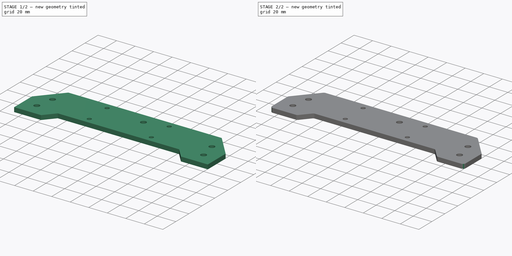
[diagram: build sequence overview — one tinted view per stage of 2, left to right]
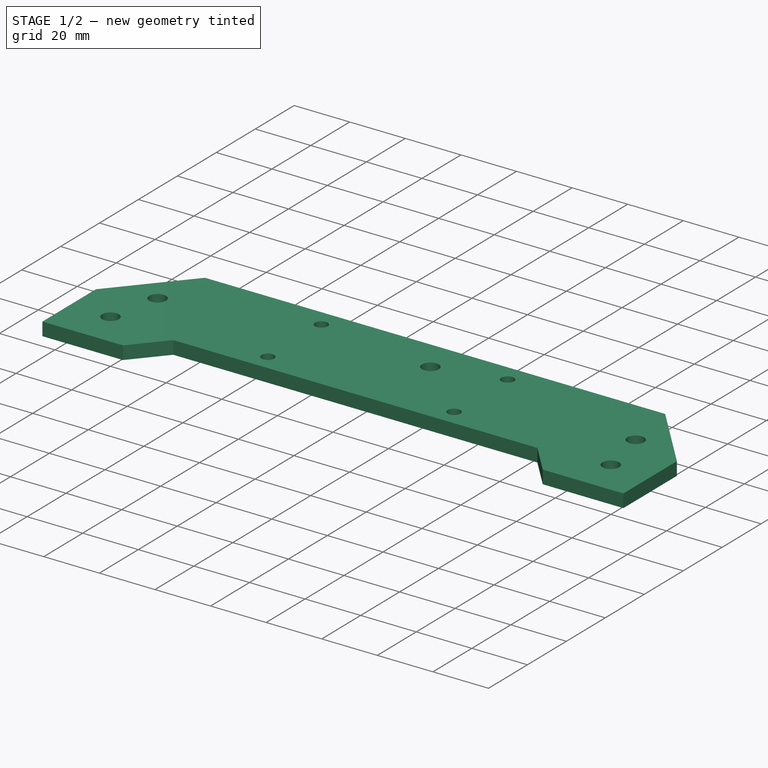
[diagram: stage 1 of 2 — iso view after this stage's code; geometry added in this stage tinted green]
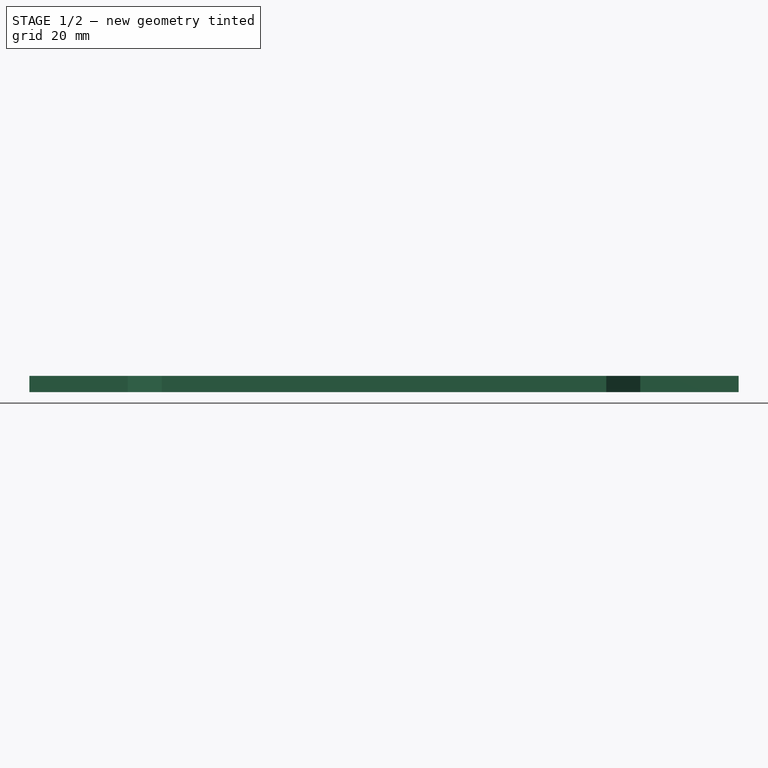
[diagram: stage 1 of 2 — front view after this stage's code; geometry added in this stage tinted green]
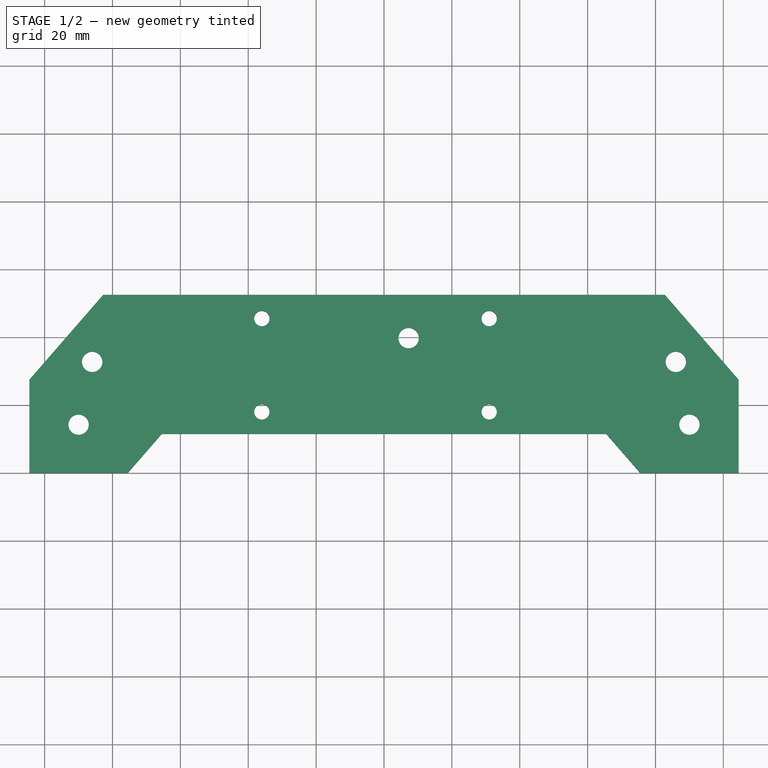
[diagram: stage 1 of 2 — top view after this stage's code; geometry added in this stage tinted green]
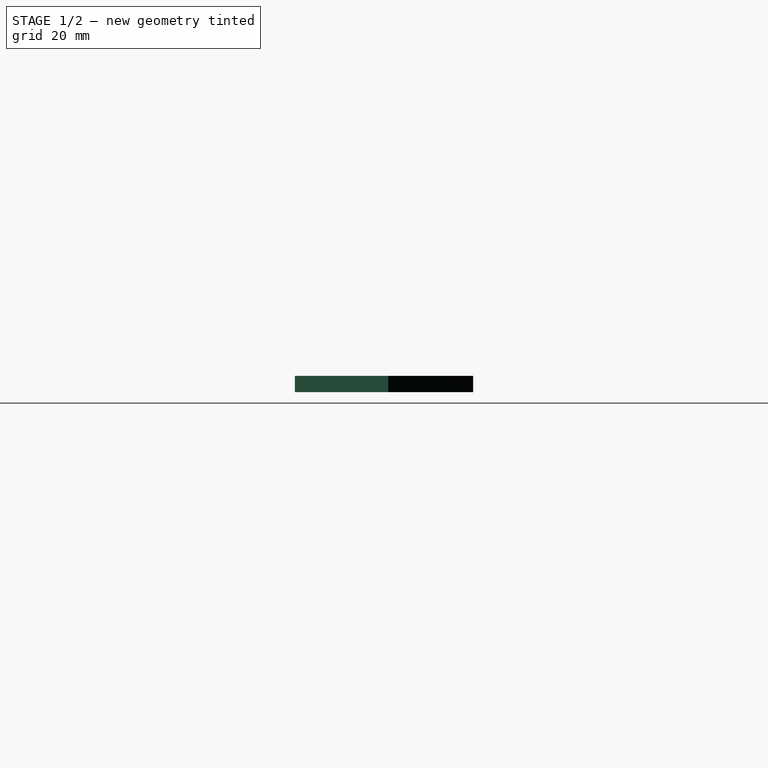
[diagram: stage 1 of 2 — right view after this stage's code; geometry added in this stage tinted green]
FCSTD DOCUMENT  (FreeCAD 0.18R4 (GitTag))
Label: [100070] Sheet Metal, Y End Plate, Syn1
License: CreativeCommons Attribution-ShareAlike
LicenseURL: http://creativecommons.org/licenses/by-sa/4.0/
objects: Drawing::FeatureView×53, Drawing::FeatureViewPython×9, Drawing::FeatureViewPart×2, Sketcher::SketchObject×1, PartDesign::Pad×1, Part::FeaturePython×1, PartDesign::Fillet×1, PartDesign::Body×1, Drawing::FeaturePage×1
note: 6 computed .brp shape members not serialized (recipe doc carries the construction recipe); baked Part::Feature solids carry a one-line shape summary decoded from their .brp

FEATURE [Sketcher::SketchObject] Sketch
  MapMode = 5
  Support = -> [XY_Plane]
  sketch-geometry (25):
    g0: LineSegment StartX=-104.5 StartY=0 StartZ=0 EndX=-104.5 EndY=27.5 EndZ=0
    g1: LineSegment StartX=-104.5 StartY=27.5 StartZ=0 EndX=-82.7678 EndY=52.5 EndZ=0
    g2: LineSegment StartX=-82.7678 StartY=52.5 StartZ=0 EndX=82.7678 EndY=52.5 EndZ=0
    g3: LineSegment StartX=82.7678 StartY=52.5 StartZ=0 EndX=104.5 EndY=27.5 EndZ=0
    g4: LineSegment StartX=104.5 StartY=27.5 StartZ=0 EndX=104.5 EndY=0 EndZ=0
    g5: LineSegment StartX=104.5 StartY=0 StartZ=0 EndX=75.5 EndY=0 EndZ=0
    g6: Circle CenterX=7.25 CenterY=39.75 CenterZ=0 NormalX=0 NormalY=0 NormalZ=1 AngleXU=0 Radius=3
    g7: Circle CenterX=86 CenterY=32.75 CenterZ=0 NormalX=0 NormalY=0 NormalZ=1 AngleXU=0 Radius=3
    g8: Circle CenterX=90 CenterY=14.25 CenterZ=0 NormalX=0 NormalY=0 NormalZ=1 AngleXU=0 Radius=3
    g9: Circle CenterX=-90 CenterY=14.25 CenterZ=0 NormalX=0 NormalY=0 NormalZ=1 AngleXU=0 Radius=3
    g10: Circle CenterX=-86 CenterY=32.75 CenterZ=0 NormalX=0 NormalY=0 NormalZ=1 AngleXU=0 Radius=3
    g11: LineSegment [constr] StartX=-86 StartY=32.75 StartZ=0 EndX=86 EndY=32.75 EndZ=0
    g12: LineSegment [constr] StartX=90 StartY=14.25 StartZ=0 EndX=-90 EndY=14.25 EndZ=0
    g13: LineSegment StartX=-75.5 StartY=0 StartZ=0 EndX=-65.5032 EndY=11.5 EndZ=0
    g14: LineSegment StartX=-65.5032 StartY=11.5 StartZ=0 EndX=65.5032 EndY=11.5 EndZ=0
    g15: LineSegment StartX=65.5032 StartY=11.5 StartZ=0 EndX=75.5 EndY=0 EndZ=0
    g16: LineSegment StartX=-75.5 StartY=0 StartZ=0 EndX=-104.5 EndY=0 EndZ=0
    g17: LineSegment [constr] StartX=-36 StartY=45.5 StartZ=0 EndX=31 EndY=45.5 EndZ=0
    g18: LineSegment [constr] StartX=31 StartY=45.5 StartZ=0 EndX=31 EndY=18 EndZ=0
    g19: LineSegment [constr] StartX=31 StartY=18 StartZ=0 EndX=-36 EndY=18 EndZ=0
    g20: LineSegment [constr] StartX=-36 StartY=18 StartZ=0 EndX=-36 EndY=45.5 EndZ=0
    g21: Circle CenterX=-36 CenterY=45.5 CenterZ=0 NormalX=0 NormalY=0 NormalZ=1 AngleXU=0 Radius=2.25
    g22: Circle CenterX=-36 CenterY=18 CenterZ=0 NormalX=0 NormalY=0 NormalZ=1 AngleXU=0 Radius=2.25
    g23: Circle CenterX=31 CenterY=18 CenterZ=0 NormalX=0 NormalY=0 NormalZ=1 AngleXU=0 Radius=2.25
    g24: Circle CenterX=31 CenterY=45.5 CenterZ=0 NormalX=0 NormalY=0 NormalZ=1 AngleXU=0 Radius=2.25
  constraints (68):
    c: PointOnObject(g0,g-1)
    c: Vertical(g0)
    c: Coincident(g0,g1)
    c: Coincident(g1,g2)
    c: Horizontal(g2)
    c: Coincident(g2,g3)
    c: Coincident(g3,g4)
    c: PointOnObject(g4,g-1)
    c: Vertical(g4)
    c: Coincident(g4,g5)
    c: Coincident(g16,g0)
    c: DistanceX(g0,g-1) = 104.5
    c: Angle(g1) = 0.855211
    c: DistanceY(g0,g0) = 27.5
    c: Equal(g4,g0)
    c: Angle(g3) = -0.855211
    c: DistanceX(g4) = 104.5
    c: DistanceY(g3,g3) = 25
    c: DistanceY(g6,g1) = 12.75
    c: Radius(g6) = 3
    c: Coincident(g11,g10)
    c: Coincident(g11,g7)
    c: Horizontal(g11)
    c: Coincident(g12,g8)
    c: Horizontal(g12)
    c: Coincident(g9,g12)
    c: DistanceX(g0,g9) = 14.5
    c: DistanceY(g0,g9) = 14.25
    c: DistanceX(g10,g9) = -4
    c: DistanceY(g10,g9) = -18.5
    c: DistanceX(g8,g4) = 14.5
    c: DistanceX(g7,g4) = 18.5
    c: Equal(g7,g8)
    c: Equal(g8,g9)
    c: Equal(g9,g10)
    c: Equal(g10,g6)
    c: Coincident(g13,g14)
    c: Coincident(g14,g15)
    c: Equal(g13,g15)
    c: Parallel(g15,g3)
    c: Coincident(g5,g15)
    c: Coincident(g16,g13)
    c: Tangent(g5,g16)
    c: DistanceX(g5,g5) = 29
    c: DistanceX(g16,g16) = 29
    c: Horizontal(g14)
    c: DistanceY(g13,g13) = 11.5
    c: DistanceX(g0,g6) = 111.75
    c: Coincident(g17,g18)
    c: Coincident(g18,g19)
    c: Coincident(g19,g20)
    c: Coincident(g20,g17)
    c: Horizontal(g17)
    c: Horizontal(g19)
    c: Vertical(g18)
    c: Vertical(g20)
    c: Coincident(g21,g17)
    c: Coincident(g22,g19)
    c: Coincident(g23,g18)
    c: Coincident(g24,g17)
    c: DistanceY(g6,g17) = 5.75
    c: DistanceX(g6,g17) = 23.75
    c: DistanceX(g6,g19) = -43.25
    c: DistanceY(g6,g19) = -21.75
    c: Radius(g21) = 2.25
    c: Equal(g21,g22)
    c: Equal(g21,g23)
    c: Equal(g21,g24)
FEATURE [PartDesign::Pad] Pad
  Length = 4.763
  Length2 = 100
  Profile = -> Sketch
  Type = 0
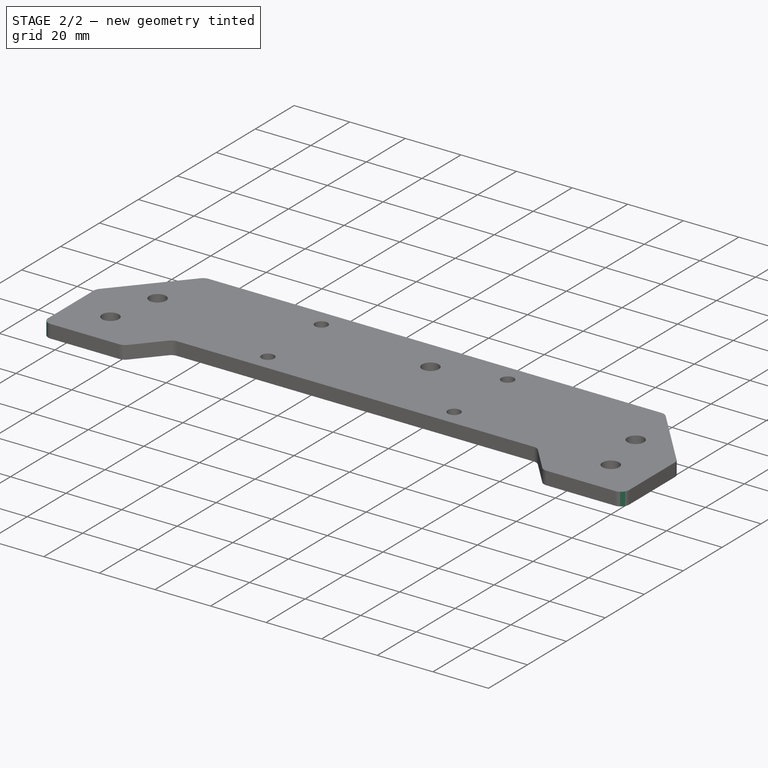
[diagram: stage 2 of 2 — iso view after this stage's code; geometry added in this stage tinted green]
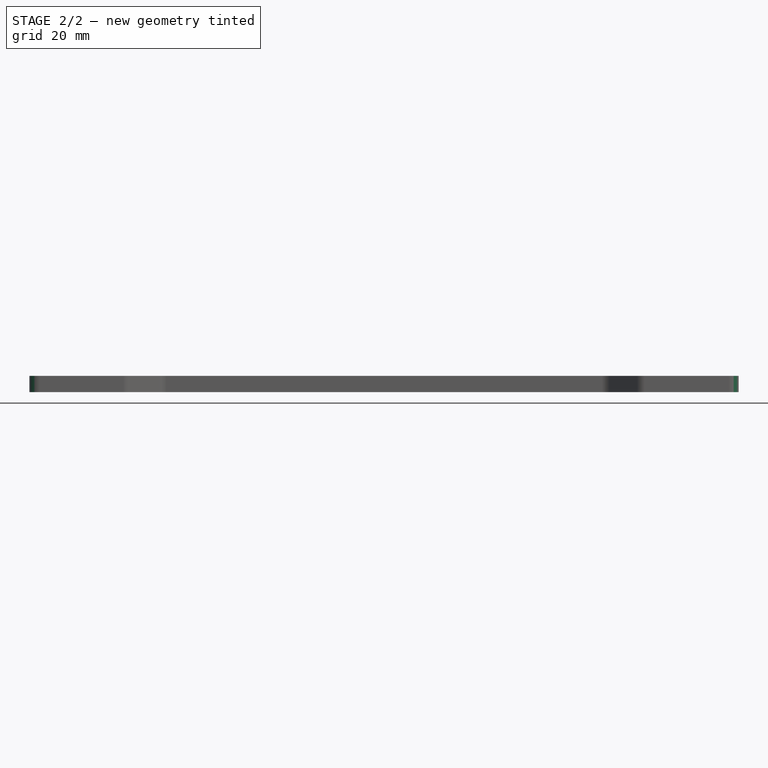
[diagram: stage 2 of 2 — front view after this stage's code; geometry added in this stage tinted green]
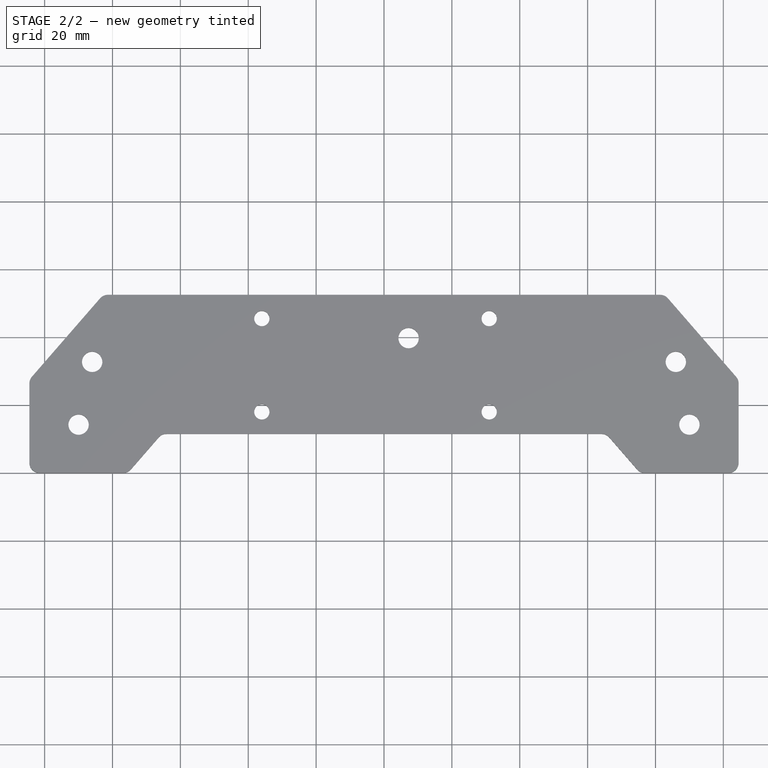
[diagram: stage 2 of 2 — top view after this stage's code; geometry added in this stage tinted green]
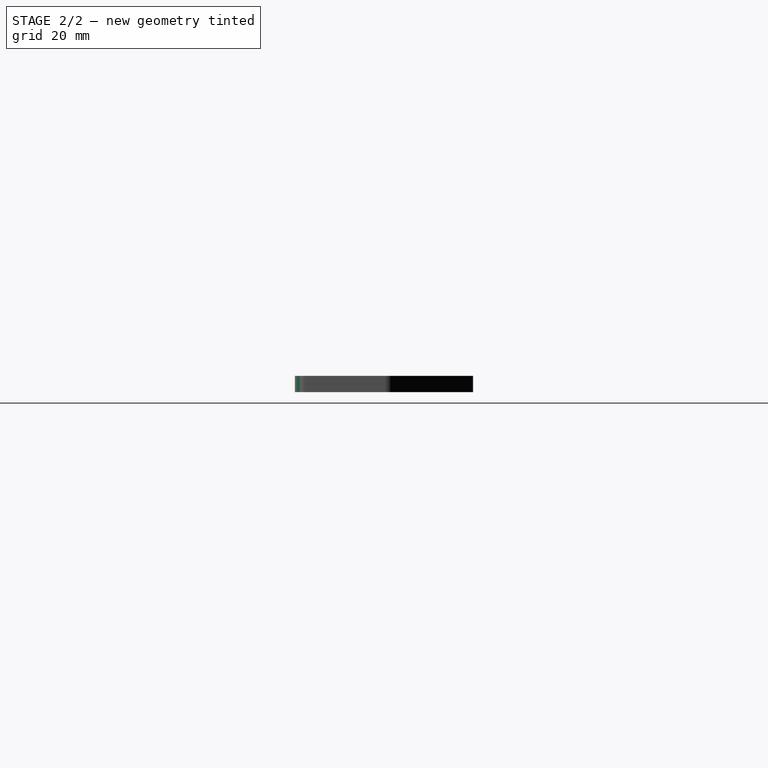
[diagram: stage 2 of 2 — right view after this stage's code; geometry added in this stage tinted green]
FEATURE [Part::FeaturePython] Y_bed_assembly_01  # a2plus imported part (geometry in sourceFile) (typed FeaturePython)
  fixedPosition = true
  sourceFile = <userpath>/Projects/taz-quiver/Production_parts/Printed_parts/TAZ7_assembly/Assemblies/Y_bed_assembly.fcstd
  timeLastImport = 1.52227e+09
  updateColors = true
FEATURE [PartDesign::Fillet] Fillet
  Base = -> Pad [Edge11,Edge14,Edge17,Edge20,Edge23,Edge26,Edge1,Edge2,Edge5,Edge8]
  BaseFeature = -> Pad
  Radius = 3
FEATURE [PartDesign::Body] Body
  Group = -> [Sketch,Pad,Fillet]
  Origin = -> Origin
  Tip = -> Pad
FEATURE [Drawing::FeatureViewPart] Ortho  label="Ortho_0_0"
  Direction = (0,0,1)
  HiddenWidth = 0.15
  LineWidth = 0.35
  Rotation = 0
  Scale = 0.5
  ShowHiddenLines = false
  ShowSmoothLines = false
  Source = -> Fillet
  Tolerance = 0.05
  ViewResult = <g id="Ortho_0_0"\n   transform="rotate(0,170,94.625) translate(170,94.625) scale(0.5,0.5)"\n  >\n<g   fill="none"\n   stroke="rgb(0, 0, 0)"\n   stroke-linecap="butt"\n   stroke-linejoin="miter"\n   stroke-width="0.700000"\n   transform="scale(1,-1)"\n  >\n<path id= "1" d=" M -76.8672 0 L -101.5 0 " />\n<path d="M-76.8672 -4.44089e-16 A3 3 0 0 1 -74.6031 1.03182" /><path d="M-101.5 -4.44089e-16 A3 3 0 0 0 -104.5 3" /><path id= "4" d=" M -74.6031 1.03182 L -66.4002 10.4682 " />\n<path id= "5" d=" M -104.5 3 L -104.5 26.3783 " />\n<path d="M-64.136 11.5 A3 3 0 0 1 -66.4002 10.4682" /><path d="M-104.5 26.3783 A3 3 0 0 0 -103.764 28.3465" /><path id= "8" d=" M -64.136 11.5 L 64.136 11.5 " />\n<path id= "9" d=" M -103.764 28.3465 L -83.6648 51.4682 " />\n<path d="M66.4002 10.4682 A3 3 0 0 1 64.136 11.5" /><path d="M-83.6648 51.4682 A3 3 0 0 0 -81.4007 52.5" /><path id= "12" d=" M 66.4002 10.4682 L 74.6031 1.03182 " />\n<path id= "13" d=" M -81.4007 52.5 L 81.4007 52.5 " />\n<path d="M76.8672 -1.33227e-15 A3 3 0 0 0 74.6031 1.03182" /><path d="M81.4007 52.5 A3 3 0 0 0 83.6648 51.4682" /><path id= "16" d=" M 101.5 0 L 76.8672 0 " />\n<path id= "17" d=" M 83.6648 51.4682 L 103.764 28.3465 " />\n<path d="M104.5 3 A3 3 0 0 0 101.5 -4.44089e-16" /><path d="M103.764 28.3465 A3 3 0 0 0 104.5 26.3783" /><path id= "20" d=" M 104.5 26.3783 L 104.5 3 " />\n<circle cx ="-86" cy ="32.75" r ="3" /><circle cx ="-90" cy ="14.25" r ="3" /><circle cx ="90" cy ="14.25" r ="3" /><circle cx ="86" cy ="32.75" r ="3" /><circle cx ="7.25" cy ="39.75" r ="3" /><circle cx ="31" cy ="18" r ="2.25" /><circle cx ="-36" cy ="18" r ="2.25" /><circle cx ="31" cy ="45.5" r ="2.25" /><circle cx ="-36" cy ="45.5" r ="2.25" /></g>\n</g>
  Visible = true
  X = 170
  Y = 94.625
FEATURE [Drawing::FeatureViewPart] Ortho001  label="Ortho_1_0"
  Direction = (-1,0,0)
  HiddenWidth = 0.15
  LineWidth = 0.35
  Rotation = 180
  Scale = 0.5
  ShowHiddenLines = false
  ShowSmoothLines = false
  Source = -> Fillet
  Tolerance = 0.05
  ViewResult = <blob: 2029 chars omitted>
  Visible = true
  X = 262.354
  Y = 94.625
FEATURE [Drawing::FeatureView] centerLines001
  Rotation = 0
  ViewResult = <g transform="scale(0.500000,0.500000)" stroke="rgb(0,0,255)"  stroke-width="0.640000" > <path d="M 304.000000,143.750000 L 310.000000,143.750000 M 314.000000,143.750000 L 326.000000,143.750000 M 330.000000,143.750000 L 336.000000,143.750000 M 340.000000,143.750000 L 352.000000,143.750000 M 356.000000,143.750000 L 362.000000,143.750000 M 366.000000,143.750000 L 370.666859,143.750000 "/>\n<path d="M 304.000000,143.750000 L 310.000000,143.750000 M 314.000000,143.750000 L 326.000000,143.750000 M 330.000000,143.750000 L 336.000000,143.750000 M 340.000000,143.750000 L 352.000000,143.750000 M 356.000000,143.750000 L 362.000000,143.750000 M 366.000000,143.750000 L 369.770988,143.750000 "/> </g> 
  Visible = true
  X = 0
  Y = 0
FEATURE [Drawing::FeatureView] centerLines002
  Rotation = 0
  ViewResult = <g transform="scale(0.500000,0.500000)" stroke="rgb(0,0,255)"  stroke-width="0.640000" > <path d="M 371.000000,143.750000 L 371.000000,149.750000 M 371.000000,153.750000 L 371.000000,165.750000 M 371.000000,169.750000 L 371.000000,171.223453 "/>\n<path d="M 371.000000,143.750000 L 371.000000,149.750000 M 371.000000,153.750000 L 371.000000,165.750000 M 371.000000,169.750000 L 371.000000,171.223453 "/> </g> 
  Visible = true
  X = 0
  Y = 0
FEATURE [Drawing::FeatureView] centerLines003
  Rotation = 0
  ViewResult = <g transform="scale(0.500000,0.500000)" stroke="rgb(0,0,255)"  stroke-width="0.640000" > <path d="M 371.000000,171.250000 L 365.000000,171.250000 M 361.000000,171.250000 L 349.000000,171.250000 M 345.000000,171.250000 L 339.000000,171.250000 M 335.000000,171.250000 L 323.000000,171.250000 M 319.000000,171.250000 L 313.000000,171.250000 M 309.000000,171.250000 L 303.476492,171.250000 "/>\n<path d="M 371.000000,171.250000 L 365.000000,171.250000 M 361.000000,171.250000 L 349.000000,171.250000 M 345.000000,171.250000 L 339.000000,171.250000 M 335.000000,171.250000 L 323.000000,171.250000 M 319.000000,171.250000 L 313.000000,171.250000 M 309.000000,171.250000 L 303.476492,171.250000 "/> </g> 
  Visible = true
  X = 0
  Y = 0
FEATURE [Drawing::FeatureView] centerLines004
  Rotation = 0
  ViewResult = <g transform="scale(0.500000,0.500000)" stroke="rgb(0,0,255)"  stroke-width="0.640000" > <path d="M 304.000000,171.250000 L 304.000000,165.250000 M 304.000000,161.250000 L 304.000000,149.250000 M 304.000000,145.250000 L 304.000000,143.675402 "/>\n<path d="M 304.000000,171.250000 L 304.000000,165.250000 M 304.000000,161.250000 L 304.000000,149.250000 M 304.000000,145.250000 L 304.000000,143.675402 "/> </g> 
  Visible = true
  X = 0
  Y = 0
FEATURE [Drawing::FeatureView] dimStack001
  Rotation = 0
  ViewResult = <g> <line x1="117.250000" y1="94.625000" x2="110.103744" y2="94.625000" style="stroke:rgb(0,0,255);stroke-width:0.10" />\n<line x1="122.999999" y1="87.500000" x2="110.103744" y2="87.500000" style="stroke:rgb(0,0,255);stroke-width:0.10" />\n<line x1="111.103744" y1="94.625000" x2="111.103744" y2="87.500000" style="stroke:rgb(0,0,255);stroke-width:0.10" />\n<polygon points="111.103744,94.625000 110.103744,97.625000 111.103744,98.625000 112.103744,97.625000" style="fill:rgb(0,0,255);stroke:rgb(0,0,255);stroke-width:0" />\n<polygon points="111.103744,87.500000 112.103744,84.500000 111.103744,83.500000 110.103744,84.500000" style="fill:rgb(0,0,255);stroke:rgb(0,0,255);stroke-width:0" />\n<text x="109.547217" y="101.074502" font-family="inherit" font-size="3" fill="rgb(0,0,255)" text-anchor="middle" transform="rotate(-90.000000 109.547217,101.074502)" >14.3 x2</text> </g> 
  Visible = true
  X = 0
  Y = 0
FEATURE [Drawing::FeatureView] dimStack002
  Rotation = 0
  ViewResult = <g> <line x1="117.250000" y1="94.625000" x2="115.290406" y2="94.625000" style="stroke:rgb(0,0,255);stroke-width:0.10" />\n<line x1="135.932000" y1="88.875000" x2="115.290406" y2="88.875000" style="stroke:rgb(0,0,255);stroke-width:0.10" />\n<line x1="116.290406" y1="94.625000" x2="116.290406" y2="88.875000" style="stroke:rgb(0,0,255);stroke-width:0.10" />\n<polygon points="116.290406,94.625000 115.290406,97.625000 116.290406,98.625000 117.290406,97.625000" style="fill:rgb(0,0,255);stroke:rgb(0,0,255);stroke-width:0" />\n<polygon points="116.290406,88.875000 117.290406,85.875000 116.290406,84.875000 115.290406,85.875000" style="fill:rgb(0,0,255);stroke:rgb(0,0,255);stroke-width:0" />\n<text x="114.943905" y="101.011311" font-family="inherit" font-size="3" fill="rgb(0,0,255)" text-anchor="middle" transform="rotate(-90.000000 114.943905,101.011311)" >11.5</text> </g> 
  Visible = true
  X = 0
  Y = 0
FEATURE [Drawing::FeatureView] dimStack003
  Rotation = 0
  ViewResult = <g> <line x1="117.250000" y1="94.625000" x2="104.826089" y2="94.625000" style="stroke:rgb(0,0,255);stroke-width:0.10" />\n<line x1="148.999999" y1="85.625000" x2="104.826089" y2="85.625000" style="stroke:rgb(0,0,255);stroke-width:0.10" />\n<line x1="105.826089" y1="94.625000" x2="105.826089" y2="85.625000" style="stroke:rgb(0,0,255);stroke-width:0.10" />\n<polygon points="105.826089,94.625000 104.826089,97.625000 105.826089,98.625000 106.826089,97.625000" style="fill:rgb(0,0,255);stroke:rgb(0,0,255);stroke-width:0" />\n<polygon points="105.826089,85.625000 106.826089,82.625000 105.826089,81.625000 104.826089,82.625000" style="fill:rgb(0,0,255);stroke:rgb(0,0,255);stroke-width:0" />\n<text x="103.826089" y="90.125000" font-family="inherit" font-size="3" fill="rgb(0,0,255)" text-anchor="middle" transform="rotate(-90.000000 103.826089,90.125000)" >18.0</text> </g> 
  Visible = true
  X = 0
  Y = 0
FEATURE [Drawing::FeatureView] dimStack004
  Rotation = 0
  ViewResult = <g> <line x1="117.250000" y1="94.625000" x2="98.820481" y2="94.625000" style="stroke:rgb(0,0,255);stroke-width:0.10" />\n<line x1="117.249999" y1="81.435913" x2="98.820481" y2="81.435913" style="stroke:rgb(0,0,255);stroke-width:0.10" />\n<line x1="99.820481" y1="94.625000" x2="99.820481" y2="81.435913" style="stroke:rgb(0,0,255);stroke-width:0.10" />\n<polygon points="99.820481,94.625000 100.820481,91.625000 99.820481,90.625000 98.820481,91.625000" style="fill:rgb(0,0,255);stroke:rgb(0,0,255);stroke-width:0" />\n<polygon points="99.820481,81.435913 98.820481,84.435913 99.820481,85.435913 100.820481,84.435913" style="fill:rgb(0,0,255);stroke:rgb(0,0,255);stroke-width:0" />\n<text x="97.820481" y="88.030456" font-family="inherit" font-size="3" fill="rgb(0,0,255)" text-anchor="middle" transform="rotate(-90.000000 97.820481,88.030456)" >26.4</text> </g> 
  Visible = true
  X = 0
  Y = 0
FEATURE [Drawing::FeatureView] dimStack024
  Rotation = 0
  ViewResult = <g> <line x1="262.354000" y1="66.890900" x2="262.354000" y2="58.734672" style="stroke:rgb(0,0,255);stroke-width:0.10" />\n<line x1="264.735500" y1="66.890900" x2="264.735500" y2="58.734672" style="stroke:rgb(0,0,255);stroke-width:0.10" />\n<line x1="262.354000" y1="59.734672" x2="264.735500" y2="59.734672" style="stroke:rgb(0,0,255);stroke-width:0.10" />\n<polygon points="262.354000,59.734672 259.354000,58.734672 258.354000,59.734672 259.354000,60.734672" style="fill:rgb(0,0,255);stroke:rgb(0,0,255);stroke-width:0" />\n<polygon points="264.735500,59.734672 267.735500,60.734672 268.735500,59.734672 267.735500,58.734672" style="fill:rgb(0,0,255);stroke:rgb(0,0,255);stroke-width:0" />\n<text x="263.544750" y="57.734672" font-family="inherit" font-size="3" fill="rgb(0,0,255)" text-anchor="middle"  >4.76</text> </g> 
  Visible = true
  X = 0
  Y = 0
FEATURE [Drawing::FeatureView] dim001
  Rotation = 0
  ViewResult = <g>  <circle cx ="127.000000" cy ="78.250000" r="0.250000" stroke="none" fill="rgb(0,0,255)" /> \n<line x1="112.441735" y1="56.014173" x2="127.821643" y2="79.504951" style="stroke:rgb(0,0,255);stroke-width:0.10" />\n<polygon points="126.178357,76.995049 125.371705,73.937384 123.987309,73.648512 123.698437,75.032908" style="fill:rgb(0,0,255);stroke:rgb(0,0,255);stroke-width:0" />\n<polygon points="127.821643,79.504951 128.628295,82.562616 130.012691,82.851488 130.301563,81.467092" style="fill:rgb(0,0,255);stroke:rgb(0,0,255);stroke-width:0" />\n<line x1="112.441735" y1="56.014173" x2="103.347183" y2="56.014173" style="stroke:rgb(0,0,255);stroke-width:0.10" />\n<text x="107.894459" y="54.014173" font-family="inherit" font-size="3" fill="rgb(0,0,255)" text-anchor="middle"  >Ø6.0 x5</text> </g>
  Visible = true
  X = 0
  Y = 0
FEATURE [Drawing::FeatureView] dim002
  Rotation = 0
  ViewResult = <g>  <circle cx ="185.500000" cy ="71.875000" r="0.250000" stroke="none" fill="rgb(0,0,255)" /> \n<line x1="206.487672" y1="37.411680" x2="184.979872" y2="72.729088" style="stroke:rgb(0,0,255);stroke-width:0.10" />\n<polygon points="186.020128,71.020912 188.434599,68.978774 188.100639,67.604558 186.726422,67.938518" style="fill:rgb(0,0,255);stroke:rgb(0,0,255);stroke-width:0" />\n<polygon points="184.979872,72.729088 182.565401,74.771226 182.899361,76.145442 184.273578,75.811482" style="fill:rgb(0,0,255);stroke:rgb(0,0,255);stroke-width:0" />\n<line x1="206.487672" y1="37.411680" x2="213.308586" y2="37.411680" style="stroke:rgb(0,0,255);stroke-width:0.10" />\n<text x="209.898129" y="35.411680" font-family="inherit" font-size="3" fill="rgb(0,0,255)" text-anchor="middle"  >Ø4.5 x4</text> </g>
  Visible = true
  X = 0
  Y = 0
FEATURE [Drawing::FeatureView] dim003
  Rotation = 0
  ViewResult = <g>  <circle cx ="220.750000" cy ="93.125000" r="0.250000" stroke="none" fill="rgb(0,0,255)" /> \n<line x1="227.983886" y1="110.168097" x2="220.750000" y2="93.125000" style="stroke:rgb(0,0,255);stroke-width:0.10" />\n<polygon points="221.336064,94.505771 221.587677,97.658023 222.898900,98.187828 223.428705,96.876605" style="fill:rgb(0,0,255);stroke:rgb(0,0,255);stroke-width:0" />\n<line x1="227.983886" y1="110.168097" x2="236.871743" y2="110.168097" style="stroke:rgb(0,0,255);stroke-width:0.10" />\n<text x="234.764218" y="108.256260" font-family="inherit" font-size="3" fill="rgb(0,0,255)" text-anchor="middle"  >R3.0 x10</text> </g>
  Visible = true
  X = 0
  Y = 0
FEATURE [Drawing::FeatureView] centerLines005
  Rotation = 0
  ViewResult = <g transform="scale(0.500000,0.500000)" stroke="rgb(0,0,255)"  stroke-width="0.640000" > <path d="M 238.500000,162.871825 L 238.500000,165.099618 "/>\n<path d="M 238.500000,162.871825 L 239.263415,162.871825 "/>\n<path d="M 238.500000,162.871825 L 238.500000,160.644549 "/>\n<path d="M 238.500000,162.871825 L 236.642786,162.871825 "/> </g> 
  Visible = true
  X = 0
  Y = 0
FEATURE [Drawing::FeatureView] centerLines006
  Rotation = 0
  ViewResult = <g transform="scale(0.500000,0.500000)" stroke="rgb(0,0,255)"  stroke-width="0.640000" > <path d="M 258.599309,139.750000 L 258.599309,141.251896 "/>\n<path d="M 258.599309,139.750000 L 256.035440,139.750000 "/>\n<path d="M 258.599309,139.750000 L 258.599309,137.583015 "/>\n<path d="M 258.599309,139.750000 L 260.228446,139.750000 "/> </g> 
  Visible = true
  X = 0
  Y = 0
FEATURE [Drawing::FeatureView] centerLines007
  Rotation = 0
  ViewResult = <g transform="scale(0.500000,0.500000)" stroke="rgb(0,0,255)"  stroke-width="0.640000" > <path d="M 263.132774,186.250000 L 263.132774,183.706083 "/>\n<path d="M 263.132774,186.250000 L 263.373200,186.250000 "/>\n<path d="M 263.132774,186.250000 L 263.132774,187.637026 "/>\n<path d="M 263.132774,186.250000 L 261.538760,186.250000 "/> </g> 
  Visible = true
  X = 0
  Y = 0
FEATURE [Drawing::FeatureView] centerLines008
  Rotation = 0
  ViewResult = <g transform="scale(0.500000,0.500000)" stroke="rgb(0,0,255)"  stroke-width="0.640000" > <path d="M 275.863909,180.750000 L 275.863909,178.464825 "/>\n<path d="M 275.863909,180.750000 L 277.786659,180.750000 "/>\n<path d="M 275.863909,180.750000 L 275.863909,182.133706 "/>\n<path d="M 275.863909,180.750000 L 273.855716,180.750000 "/> </g> 
  Visible = true
  X = 0
  Y = 0
FEATURE [Drawing::FeatureView] centerLines009
  Rotation = 0
  ViewResult = <g transform="scale(0.500000,0.500000)" stroke="rgb(0,0,255)"  stroke-width="0.640000" > <path d="M 404.136091,180.750000 L 404.136091,182.919894 "/>\n<path d="M 404.136091,180.750000 L 400.956216,180.750000 "/>\n<path d="M 404.136091,180.750000 L 404.136091,178.726888 "/>\n<path d="M 404.136091,180.750000 L 405.935411,180.750000 "/> </g> 
  Visible = true
  X = 0
  Y = 0
FEATURE [Drawing::FeatureView] centerLines010
  Rotation = 0
  ViewResult = <g transform="scale(0.500000,0.500000)" stroke="rgb(0,0,255)"  stroke-width="0.640000" > <path d="M 416.867226,186.250000 L 416.867226,184.492272 "/>\n<path d="M 416.867226,186.250000 L 419.038555,186.250000 "/>\n<path d="M 416.867226,186.250000 L 416.867226,189.995592 "/>\n<path d="M 416.867226,186.250000 L 414.583486,186.250000 "/> </g> 
  Visible = true
  X = 0
  Y = 0
FEATURE [Drawing::FeatureView] centerLines011
  Rotation = 0
  ViewResult = <g transform="scale(0.500000,0.500000)" stroke="rgb(0,0,255)"  stroke-width="0.640000" > <path d="M 421.400691,139.750000 L 421.400691,142.038084 "/>\n<path d="M 421.400691,139.750000 L 418.514429,139.750000 "/>\n<path d="M 421.400691,139.750000 L 421.400691,138.107141 "/>\n<path d="M 421.400691,139.750000 L 423.755687,139.750000 "/> </g> 
  Visible = true
  X = 0
  Y = 0
FEATURE [Drawing::FeatureView] dimText001
  Rotation = 0
  ViewResult = <g> <text x="11.321117" y="108.003453" font-family="inherit" font-size="3" fill="rgb(0,0,0)" text-anchor="inherit" transform="rotate(0.000000 11.321117,108.003453)" >Notes</text> </g>
  Visible = true
  X = 0
  Y = 0
FEATURE [Drawing::FeatureView] dimText002
  Rotation = 0
  ViewResult = <g> <text x="11.094694" y="112.079055" font-family="inherit" font-size="3" fill="rgb(0,0,0)" text-anchor="inherit" transform="rotate(0.000000 11.094694,112.079055)" >1. Parts must be RoHS compliant</text> </g>
  Visible = true
  X = 0
  Y = 0
FEATURE [Drawing::FeatureView] dimText003
  Rotation = 0
  ViewResult = <g> <text x="11.094694" y="116.381079" font-family="inherit" font-size="3" fill="rgb(0,0,0)" text-anchor="inherit" transform="rotate(0.000000 11.094694,116.381079)" >2. Material: 5052 H-32 Aluminum</text> </g>
  Visible = true
  X = 0
  Y = 0
FEATURE [Drawing::FeatureView] dimText004
  Rotation = 0
  ViewResult = <g> <text x="11.094694" y="120.909526" font-family="inherit" font-size="3" fill="rgb(0,0,0)" text-anchor="inherit" transform="rotate(0.000000 11.094694,120.909526)" >3. Break all sharp edges prior to powder coat</text> </g>
  Visible = true
  X = 0
  Y = 0
FEATURE [Drawing::FeatureView] dimText005
  Rotation = 0
  ViewResult = <g> <text x="11.094694" y="125.211550" font-family="inherit" font-size="3" fill="rgb(0,0,0)" text-anchor="inherit" transform="rotate(0.000000 11.094694,125.211550)" >4. Part is to be powder coated with Cardinal color </text> </g>
  Visible = true
  X = 0
  Y = 0
FEATURE [Drawing::FeatureView] dimText009
  Rotation = 0
  ViewResult = <g> <text x="10.916850" y="132.168081" font-family="inherit" font-size="3" fill="rgb(0,0,0)" text-anchor="inherit"  >5. Edge break no greater than R1.0mm</text> </g>
  Visible = true
  X = 0
  Y = 0
FEATURE [Drawing::FeatureView] dimText010
  Rotation = 0
  ViewResult = <g> <text x="10.810861" y="135.877690" font-family="inherit" font-size="3" fill="rgb(0,0,0)" text-anchor="inherit"  >6. Unspecified features ⌓ 1mm per 3D model</text> </g>
  Visible = true
  X = 0
  Y = 0
FEATURE [Drawing::FeatureView] grabPoint002
  Rotation = 0
  ViewResult = <g> <line x1="161.212701495" y1="78.1157050784" x2="161.212701495" y2="78.1157050784" style="stroke:rgb(0,0,0);stroke-width:0.01" /> </g> 
  Visible = true
  X = 0
  Y = 0
FEATURE [Drawing::FeatureView] dimText012
  Rotation = 0
  ViewResult = <g> <text x="10.916850" y="139.269333" font-family="inherit" font-size="3" fill="rgb(0,0,0)" text-anchor="inherit"  >7. Parts must be free of oil and debris</text> </g>
  Visible = true
  X = 0
  Y = 0
FEATURE [Drawing::FeatureView] dimStack017
  Rotation = 0
  ViewResult = <g> <line x1="152.000000" y1="69.874999" x2="152.000000" y2="51.146508" style="stroke:rgb(0,0,255);stroke-width:0.10" />\n<line x1="185.500000" y1="69.874999" x2="185.500000" y2="51.146508" style="stroke:rgb(0,0,255);stroke-width:0.10" />\n<line x1="152.000000" y1="52.146508" x2="185.500000" y2="52.146508" style="stroke:rgb(0,0,255);stroke-width:0.10" />\n<polygon points="152.000000,52.146508 155.000000,53.146508 156.000000,52.146508 155.000000,51.146508" style="fill:rgb(0,0,255);stroke:rgb(0,0,255);stroke-width:0" />\n<polygon points="185.500000,52.146508 182.500000,51.146508 181.500000,52.146508 182.500000,53.146508" style="fill:rgb(0,0,255);stroke:rgb(0,0,255);stroke-width:0" />\n<text x="168.750000" y="50.146508" font-family="inherit" font-size="3" fill="rgb(0,0,255)" text-anchor="middle"  >67.0</text> </g> 
  Visible = true
  X = 0
  Y = 0
FEATURE [Drawing::FeatureView] dim004
  Rotation = 0
  ViewResult = <g> \n  <line x1="213.000000" y1="76.250000" x2="213.000000" y2="45.790297" style="stroke:rgb(0,0,255);stroke-width:0.10" />\n<line x1="127.000000" y1="76.250000" x2="127.000000" y2="45.790297" style="stroke:rgb(0,0,255);stroke-width:0.10" />\n<line x1="213.000000" y1="46.790297" x2="127.000000" y2="46.790297" style="stroke:rgb(0,0,255);stroke-width:0.10" /> \n  <polygon points="127.000000,46.790297 130.000000,47.790297 131.000000,46.790297 130.000000,45.790297" style="fill:rgb(0,0,255);stroke:rgb(0,0,255);stroke-width:0" /><polygon points="213.000000,46.790297 210.000000,45.790297 209.000000,46.790297 210.000000,47.790297" style="fill:rgb(0,0,255);stroke:rgb(0,0,255);stroke-width:0" /> \n  <text x="170.000000" y="44.790297" font-family="inherit" font-size="3" fill="rgb(0,0,255)" text-anchor="middle"  >172.0</text> </g>
  Visible = true
  X = 0
  Y = 0
FEATURE [Drawing::FeatureView] dim005
  Rotation = 0
  ViewResult = <g> \n  <line x1="125.000000" y1="85.500000" x2="125.000000" y2="39.961828" style="stroke:rgb(0,0,255);stroke-width:0.10" />\n<line x1="215.000000" y1="85.500000" x2="215.000000" y2="39.961828" style="stroke:rgb(0,0,255);stroke-width:0.10" />\n<line x1="125.000000" y1="40.961828" x2="215.000000" y2="40.961828" style="stroke:rgb(0,0,255);stroke-width:0.10" /> \n  <polygon points="215.000000,40.961828 212.000000,39.961828 211.000000,40.961828 212.000000,41.961828" style="fill:rgb(0,0,255);stroke:rgb(0,0,255);stroke-width:0" /><polygon points="125.000000,40.961828 128.000000,41.961828 129.000000,40.961828 128.000000,39.961828" style="fill:rgb(0,0,255);stroke:rgb(0,0,255);stroke-width:0" /> \n  <text x="170.000000" y="38.961828" font-family="inherit" font-size="3" fill="rgb(0,0,255)" text-anchor="middle"  >180.0</text> </g>
  Visible = true
  X = 0
  Y = 0
FEATURE [Drawing::FeatureView] dim006
  Rotation = 0
  ViewResult = <g> \n  <line x1="217.000000" y1="87.500000" x2="231.180877" y2="87.500000" style="stroke:rgb(0,0,255);stroke-width:0.10" />\n<line x1="215.000000" y1="78.250000" x2="231.180877" y2="78.250000" style="stroke:rgb(0,0,255);stroke-width:0.10" />\n<line x1="230.180877" y1="87.500000" x2="230.180877" y2="78.250000" style="stroke:rgb(0,0,255);stroke-width:0.10" /> \n  <polygon points="230.180877,78.250000 231.180877,75.250000 230.180877,74.250000 229.180877,75.250000" style="fill:rgb(0,0,255);stroke:rgb(0,0,255);stroke-width:0" /><polygon points="230.180877,87.500000 229.180877,90.500000 230.180877,91.500000 231.180877,90.500000" style="fill:rgb(0,0,255);stroke:rgb(0,0,255);stroke-width:0" /> \n  <text x="228.847566" y="93.358501" font-family="inherit" font-size="3" fill="rgb(0,0,255)" text-anchor="middle" transform="rotate(-90.000000 228.847566,93.358501)" >18.5 x2</text> </g>
  Visible = true
  X = 0
  Y = 0
FEATURE [Drawing::FeatureView] dimStack005
  Rotation = 0
  ViewResult = <g> <line x1="188.500001" y1="85.625000" x2="242.023705" y2="85.625000" style="stroke:rgb(0,0,255);stroke-width:0.10" />\n<line x1="188.500001" y1="71.875000" x2="242.023705" y2="71.875000" style="stroke:rgb(0,0,255);stroke-width:0.10" />\n<line x1="241.023705" y1="85.625000" x2="241.023705" y2="71.875000" style="stroke:rgb(0,0,255);stroke-width:0.10" />\n<polygon points="241.023705,85.625000 242.023705,82.625000 241.023705,81.625000 240.023705,82.625000" style="fill:rgb(0,0,255);stroke:rgb(0,0,255);stroke-width:0" />\n<polygon points="241.023705,71.875000 240.023705,74.875000 241.023705,75.875000 242.023705,74.875000" style="fill:rgb(0,0,255);stroke:rgb(0,0,255);stroke-width:0" />\n<text x="238.298237" y="79.226656" font-family="inherit" font-size="3" fill="rgb(0,0,255)" text-anchor="middle" transform="rotate(-90.000000 238.298237,79.226656)" >27.5 </text> </g> 
  Visible = true
  X = 0
  Y = 0
FEATURE [Drawing::FeatureView] dimLine001
  Rotation = 0
  ViewResult = <g   >\n<line x1="134.768148" y1="29.538224" x2="161.212701" y2="78.115705" style="stroke:rgb(0,0,255);stroke-width:0.10" />\n<polygon points="161.212701,78.115705 160.656622,75.002704 159.300206,74.602535 158.900038,75.958952" style="fill:rgb(0,0,255);stroke:rgb(0,0,255);stroke-width:0" />\n<line x1="134.768148" y1="29.538224" x2="116.834226" y2="29.538224" style="stroke:rgb(0,0,255);stroke-width:0.10" />\n</g> 
  Visible = true
  X = 0
  Y = 0
FEATURE [Drawing::FeatureView] dimText008
  Rotation = 0
  ViewResult = <g> <text x="115.779290" y="27.692085" font-family="inherit" font-size="3" fill="rgb(0,0,0)" text-anchor="inherit"  >Manufacturer I.D. on other side</text> </g>
  Visible = true
  X = 0
  Y = 0
FEATURE [Drawing::FeatureView] dimStack006
  Rotation = 0
  ViewResult = <g> <line x1="117.250000" y1="94.625000" x2="93.754021" y2="94.625000" style="stroke:rgb(0,0,255);stroke-width:0.10" />\n<line x1="171.624999" y1="74.750000" x2="93.754021" y2="74.750000" style="stroke:rgb(0,0,255);stroke-width:0.10" />\n<line x1="94.754021" y1="94.625000" x2="94.754021" y2="74.750000" style="stroke:rgb(0,0,255);stroke-width:0.10" />\n<polygon points="94.754021,94.625000 95.754021,91.625000 94.754021,90.625000 93.754021,91.625000" style="fill:rgb(0,0,255);stroke:rgb(0,0,255);stroke-width:0" />\n<polygon points="94.754021,74.750000 93.754021,77.750000 94.754021,78.750000 95.754021,77.750000" style="fill:rgb(0,0,255);stroke:rgb(0,0,255);stroke-width:0" />\n<text x="92.754021" y="84.687500" font-family="inherit" font-size="3" fill="rgb(0,0,255)" text-anchor="middle" transform="rotate(-90.000000 92.754021,84.687500)" >39.75</text> </g> 
  Visible = true
  X = 0
  Y = 0
FEATURE [Drawing::FeatureView] dimStack007
  Rotation = 0
  ViewResult = <g> <line x1="117.250000" y1="94.625000" x2="88.666557" y2="94.625000" style="stroke:rgb(0,0,255);stroke-width:0.10" />\n<line x1="126.017719" y1="69.875000" x2="88.666557" y2="69.875000" style="stroke:rgb(0,0,255);stroke-width:0.10" />\n<line x1="89.666557" y1="94.625000" x2="89.666557" y2="69.875000" style="stroke:rgb(0,0,255);stroke-width:0.10" />\n<polygon points="89.666557,94.625000 90.666557,91.625000 89.666557,90.625000 88.666557,91.625000" style="fill:rgb(0,0,255);stroke:rgb(0,0,255);stroke-width:0" />\n<polygon points="89.666557,69.875000 88.666557,72.875000 89.666557,73.875000 90.666557,72.875000" style="fill:rgb(0,0,255);stroke:rgb(0,0,255);stroke-width:0" />\n<text x="87.666557" y="82.250000" font-family="inherit" font-size="3" fill="rgb(0,0,255)" text-anchor="middle" transform="rotate(-90.000000 87.666557,82.250000)" >49.5</text> </g> 
  Visible = true
  X = 0
  Y = 0
FEATURE [Drawing::FeatureView] dimStack019
  Rotation = 0
  ViewResult = <g> <line x1="117.250000" y1="94.625000" x2="83.437774" y2="94.625000" style="stroke:rgb(0,0,255);stroke-width:0.10" />\n<line x1="127.299650" y1="68.375000" x2="83.437774" y2="68.375000" style="stroke:rgb(0,0,255);stroke-width:0.10" />\n<line x1="84.437774" y1="94.625000" x2="84.437774" y2="68.375000" style="stroke:rgb(0,0,255);stroke-width:0.10" />\n<polygon points="84.437774,94.625000 85.437774,91.625000 84.437774,90.625000 83.437774,91.625000" style="fill:rgb(0,0,255);stroke:rgb(0,0,255);stroke-width:0" />\n<polygon points="84.437774,68.375000 83.437774,71.375000 84.437774,72.375000 85.437774,71.375000" style="fill:rgb(0,0,255);stroke:rgb(0,0,255);stroke-width:0" />\n<text x="82.437774" y="81.500000" font-family="inherit" font-size="3" fill="rgb(0,0,255)" text-anchor="middle" transform="rotate(-90.000000 82.437774,81.500000)" >52.5</text> </g> 
  Visible = true
  X = 0
  Y = 0
FEATURE [Drawing::FeatureView] dimStack008
  Rotation = 0
  ViewResult = <g> <line x1="117.750000" y1="95.125000" x2="117.750000" y2="106.655509" style="stroke:rgb(0,0,255);stroke-width:0.10" />\n<line x1="125.000000" y1="89.500001" x2="125.000000" y2="106.655509" style="stroke:rgb(0,0,255);stroke-width:0.10" />\n<line x1="117.750000" y1="105.655509" x2="125.000000" y2="105.655509" style="stroke:rgb(0,0,255);stroke-width:0.10" />\n<polygon points="117.750000,105.655509 114.750000,104.655509 113.750000,105.655509 114.750000,106.655509" style="fill:rgb(0,0,255);stroke:rgb(0,0,255);stroke-width:0" />\n<polygon points="125.000000,105.655509 128.000000,106.655509 129.000000,105.655509 128.000000,104.655509" style="fill:rgb(0,0,255);stroke:rgb(0,0,255);stroke-width:0" />\n<text x="121.375000" y="103.655509" font-family="inherit" font-size="3" fill="rgb(0,0,255)" text-anchor="middle" transform="rotate(0.000000 121.375000,103.655509)" >14.5</text> </g> 
  Visible = true
  X = 0
  Y = 0
FEATURE [Drawing::FeatureView] dimStack009
  Rotation = 0
  ViewResult = <g> <line x1="117.750000" y1="95.125000" x2="117.750000" y2="112.557511" style="stroke:rgb(0,0,255);stroke-width:0.10" />\n<line x1="127.000000" y1="80.250001" x2="127.000000" y2="112.557511" style="stroke:rgb(0,0,255);stroke-width:0.10" />\n<line x1="117.750000" y1="111.557511" x2="127.000000" y2="111.557511" style="stroke:rgb(0,0,255);stroke-width:0.10" />\n<polygon points="117.750000,111.557511 114.750000,110.557511 113.750000,111.557511 114.750000,112.557511" style="fill:rgb(0,0,255);stroke:rgb(0,0,255);stroke-width:0" />\n<polygon points="127.000000,111.557511 130.000000,112.557511 131.000000,111.557511 130.000000,110.557511" style="fill:rgb(0,0,255);stroke:rgb(0,0,255);stroke-width:0" />\n<text x="122.375000" y="109.557511" font-family="inherit" font-size="3" fill="rgb(0,0,255)" text-anchor="middle" transform="rotate(0.000000 122.375000,109.557511)" >18.5</text> </g> 
  Visible = true
  X = 0
  Y = 0
FEATURE [Drawing::FeatureView] dimStack010
  Rotation = 0
  ViewResult = <g> <line x1="117.750000" y1="95.125000" x2="117.750000" y2="117.588725" style="stroke:rgb(0,0,255);stroke-width:0.10" />\n<line x1="129.299655" y1="72.625949" x2="129.299655" y2="117.588725" style="stroke:rgb(0,0,255);stroke-width:0.10" />\n<line x1="117.750000" y1="116.588725" x2="129.299655" y2="116.588725" style="stroke:rgb(0,0,255);stroke-width:0.10" />\n<polygon points="117.750000,116.588725 120.750000,117.588725 121.750000,116.588725 120.750000,115.588725" style="fill:rgb(0,0,255);stroke:rgb(0,0,255);stroke-width:0" />\n<polygon points="129.299655,116.588725 126.299655,115.588725 125.299655,116.588725 126.299655,117.588725" style="fill:rgb(0,0,255);stroke:rgb(0,0,255);stroke-width:0" />\n<text x="123.524827" y="114.588725" font-family="inherit" font-size="3" fill="rgb(0,0,255)" text-anchor="middle"  >23.1</text> </g> 
  Visible = true
  X = 0
  Y = 0
FEATURE [Drawing::FeatureView] dimStack011
  Rotation = 0
  ViewResult = <g> <line x1="117.750000" y1="95.125000" x2="117.750000" y2="123.587481" style="stroke:rgb(0,0,255);stroke-width:0.10" />\n<line x1="131.566387" y1="95.125001" x2="131.566387" y2="123.587481" style="stroke:rgb(0,0,255);stroke-width:0.10" />\n<line x1="117.750000" y1="122.587481" x2="131.566387" y2="122.587481" style="stroke:rgb(0,0,255);stroke-width:0.10" />\n<polygon points="117.750000,122.587481 120.750000,123.587481 121.750000,122.587481 120.750000,121.587481" style="fill:rgb(0,0,255);stroke:rgb(0,0,255);stroke-width:0" />\n<polygon points="131.566387,122.587481 128.566387,121.587481 127.566387,122.587481 128.566387,123.587481" style="fill:rgb(0,0,255);stroke:rgb(0,0,255);stroke-width:0" />\n<text x="124.658193" y="120.587481" font-family="inherit" font-size="3" fill="rgb(0,0,255)" text-anchor="middle"  >27.6</text> </g> 
  Visible = true
  X = 0
  Y = 0
FEATURE [Drawing::FeatureView] dimStack012
  Rotation = 0
  ViewResult = <g> <line x1="117.750000" y1="95.125000" x2="117.750000" y2="129.392729" style="stroke:rgb(0,0,255);stroke-width:0.10" />\n<line x1="137.931954" y1="93.066854" x2="137.931954" y2="129.392729" style="stroke:rgb(0,0,255);stroke-width:0.10" />\n<line x1="117.750000" y1="128.392729" x2="137.931954" y2="128.392729" style="stroke:rgb(0,0,255);stroke-width:0.10" />\n<polygon points="117.750000,128.392729 120.750000,129.392729 121.750000,128.392729 120.750000,127.392729" style="fill:rgb(0,0,255);stroke:rgb(0,0,255);stroke-width:0" />\n<polygon points="137.931954,128.392729 134.931954,127.392729 133.931954,128.392729 134.931954,129.392729" style="fill:rgb(0,0,255);stroke:rgb(0,0,255);stroke-width:0" />\n<text x="127.840977" y="126.392729" font-family="inherit" font-size="3" fill="rgb(0,0,255)" text-anchor="middle" transform="rotate(0.000000 127.840977,126.392729)" >40.364</text> </g> 
  Visible = true
  X = 0
  Y = 0
FEATURE [Drawing::FeatureView] dimStack013
  Rotation = 0
  ViewResult = <g> <line x1="117.750000" y1="95.125000" x2="117.750000" y2="135.101223" style="stroke:rgb(0,0,255);stroke-width:0.10" />\n<line x1="152.000000" y1="88.625001" x2="152.000000" y2="135.101223" style="stroke:rgb(0,0,255);stroke-width:0.10" />\n<line x1="117.750000" y1="134.101223" x2="152.000000" y2="134.101223" style="stroke:rgb(0,0,255);stroke-width:0.10" />\n<polygon points="117.750000,134.101223 120.750000,135.101223 121.750000,134.101223 120.750000,133.101223" style="fill:rgb(0,0,255);stroke:rgb(0,0,255);stroke-width:0" />\n<polygon points="152.000000,134.101223 149.000000,133.101223 148.000000,134.101223 149.000000,135.101223" style="fill:rgb(0,0,255);stroke:rgb(0,0,255);stroke-width:0" />\n<text x="134.875000" y="132.101223" font-family="inherit" font-size="3" fill="rgb(0,0,255)" text-anchor="middle" transform="rotate(0.000000 134.875000,132.101223)" >68.5</text> </g> 
  Visible = true
  X = 0
  Y = 0
FEATURE [Drawing::FeatureView] dimStack014
  Rotation = 0
  ViewResult = <g> <line x1="117.750000" y1="95.125000" x2="117.750000" y2="141.003224" style="stroke:rgb(0,0,255);stroke-width:0.10" />\n<line x1="173.625000" y1="76.750001" x2="173.625000" y2="141.003224" style="stroke:rgb(0,0,255);stroke-width:0.10" />\n<line x1="117.750000" y1="140.003224" x2="173.625000" y2="140.003224" style="stroke:rgb(0,0,255);stroke-width:0.10" />\n<polygon points="117.750000,140.003224 120.750000,141.003224 121.750000,140.003224 120.750000,139.003224" style="fill:rgb(0,0,255);stroke:rgb(0,0,255);stroke-width:0" />\n<polygon points="173.625000,140.003224 170.625000,139.003224 169.625000,140.003224 170.625000,141.003224" style="fill:rgb(0,0,255);stroke:rgb(0,0,255);stroke-width:0" />\n<text x="145.687500" y="138.003224" font-family="inherit" font-size="3" fill="rgb(0,0,255)" text-anchor="middle" transform="rotate(0.000000 145.687500,138.003224)" >111.75</text> </g> 
  Visible = true
  X = 0
  Y = 0
FEATURE [Drawing::FeatureView] dimStack015
  Rotation = 0
  ViewResult = <g> <line x1="117.750000" y1="95.125000" x2="117.750000" y2="145.937685" style="stroke:rgb(0,0,255);stroke-width:0.10" />\n<line x1="202.068046" y1="93.459948" x2="202.068046" y2="145.937685" style="stroke:rgb(0,0,255);stroke-width:0.10" />\n<line x1="117.750000" y1="144.937685" x2="202.068046" y2="144.937685" style="stroke:rgb(0,0,255);stroke-width:0.10" />\n<polygon points="117.750000,144.937685 120.750000,145.937685 121.750000,144.937685 120.750000,143.937685" style="fill:rgb(0,0,255);stroke:rgb(0,0,255);stroke-width:0" />\n<polygon points="202.068046,144.937685 199.068046,143.937685 198.068046,144.937685 199.068046,145.937685" style="fill:rgb(0,0,255);stroke:rgb(0,0,255);stroke-width:0" />\n<text x="159.909023" y="142.937685" font-family="inherit" font-size="3" fill="rgb(0,0,255)" text-anchor="middle"  >168.6</text> </g> 
  Visible = true
  X = 0
  Y = 0
FEATURE [Drawing::FeatureView] dimStack016
  Rotation = 0
  ViewResult = <g> <line x1="117.750000" y1="95.125000" x2="117.750000" y2="151.610139" style="stroke:rgb(0,0,255);stroke-width:0.10" />\n<line x1="208.433613" y1="95.125001" x2="208.433613" y2="151.610139" style="stroke:rgb(0,0,255);stroke-width:0.10" />\n<line x1="117.750000" y1="150.610139" x2="208.433613" y2="150.610139" style="stroke:rgb(0,0,255);stroke-width:0.10" />\n<polygon points="117.750000,150.610139 120.750000,151.610139 121.750000,150.610139 120.750000,149.610139" style="fill:rgb(0,0,255);stroke:rgb(0,0,255);stroke-width:0" />\n<polygon points="208.433613,150.610139 205.433613,149.610139 204.433613,150.610139 205.433613,151.610139" style="fill:rgb(0,0,255);stroke:rgb(0,0,255);stroke-width:0" />\n<text x="163.091807" y="148.610139" font-family="inherit" font-size="3" fill="rgb(0,0,255)" text-anchor="middle"  >181.4</text> </g> 
  Visible = true
  X = 0
  Y = 0
FEATURE [Drawing::FeatureView] dimStack018
  Rotation = 0
  ViewResult = <g> <line x1="117.750000" y1="95.125000" x2="117.750000" y2="156.209103" style="stroke:rgb(0,0,255);stroke-width:0.10" />\n<line x1="210.700345" y1="73.019043" x2="210.700345" y2="156.209103" style="stroke:rgb(0,0,255);stroke-width:0.10" />\n<line x1="117.750000" y1="155.209103" x2="210.700345" y2="155.209103" style="stroke:rgb(0,0,255);stroke-width:0.10" />\n<polygon points="117.750000,155.209103 120.750000,156.209103 121.750000,155.209103 120.750000,154.209103" style="fill:rgb(0,0,255);stroke:rgb(0,0,255);stroke-width:0" />\n<polygon points="210.700345,155.209103 207.700345,154.209103 206.700345,155.209103 207.700345,156.209103" style="fill:rgb(0,0,255);stroke:rgb(0,0,255);stroke-width:0" />\n<text x="164.225173" y="153.209103" font-family="inherit" font-size="3" fill="rgb(0,0,255)" text-anchor="middle"  >185.9</text> </g> 
  Visible = true
  X = 0
  Y = 0
FEATURE [Drawing::FeatureView] dimStack020
  Rotation = 0
  ViewResult = <g> <line x1="117.750000" y1="95.125000" x2="117.750000" y2="160.667534" style="stroke:rgb(0,0,255);stroke-width:0.10" />\n<line x1="222.250000" y1="95.125000" x2="222.250000" y2="160.667534" style="stroke:rgb(0,0,255);stroke-width:0.10" />\n<line x1="117.750000" y1="159.667534" x2="222.250000" y2="159.667534" style="stroke:rgb(0,0,255);stroke-width:0.10" />\n<polygon points="117.750000,159.667534 120.750000,160.667534 121.750000,159.667534 120.750000,158.667534" style="fill:rgb(0,0,255);stroke:rgb(0,0,255);stroke-width:0" />\n<polygon points="222.250000,159.667534 219.250000,158.667534 218.250000,159.667534 219.250000,160.667534" style="fill:rgb(0,0,255);stroke:rgb(0,0,255);stroke-width:0" />\n<text x="170.000000" y="157.667534" font-family="inherit" font-size="3" fill="rgb(0,0,255)" text-anchor="middle"  >209.0</text> </g> 
  Visible = true
  X = 0
  Y = 0
FEATURE [Drawing::FeatureView] dimText011
  Rotation = 0
  ViewResult = <g> <text x="257.323940" y="53.662573" font-family="inherit" font-size="3" fill="rgb(0,0,0)" text-anchor="inherit" transform="rotate(0.000000 257.323940,53.662573)" >[0.1875"]</text> </g>
  Visible = true
  X = 0
  Y = 0
FEATURE [Drawing::FeatureView] dimLine002
  Rotation = 0
  ViewResult = <g   >\n<line x1="199.345334" y1="21.379065" x2="173.625000" y2="74.750000" style="stroke:rgb(0,0,255);stroke-width:0.10" />\n<polygon points="173.625000,74.750000 175.828250,72.481588 175.361535,71.146606 174.026553,71.613321" style="fill:rgb(0,0,255);stroke:rgb(0,0,255);stroke-width:0" />\n<line x1="199.345334" y1="21.379065" x2="218.702055" y2="21.379065" style="stroke:rgb(0,0,255);stroke-width:0.10" />\n</g> 
  Visible = true
  X = 0
  Y = 0
FEATURE [Drawing::FeatureView] dimText013
  Rotation = 0
  ViewResult = <g> <text x="186.055645" y="19.067815" font-family="inherit" font-size="3" fill="rgb(0,0,0)" text-anchor="inherit" transform="rotate(0.000000 186.055645,19.067815)" >Hang part here for powder coating</text> </g>
  Visible = true
  X = 0
  Y = 0
FEATURE [Drawing::FeatureView] dimLine003
  Rotation = 0
  ViewResult = <g   >\n<line x1="199.156201" y1="21.309227" x2="213.000000" y2="78.250000" style="stroke:rgb(0,0,255);stroke-width:0.10" />\n<polygon points="213.000000,78.250000 213.262961,75.098675 212.055023,74.363225 211.319573,75.571163" style="fill:rgb(0,0,255);stroke:rgb(0,0,255);stroke-width:0" />\n<line x1="199.156201" y1="21.309227" x2="204.584787" y2="21.309227" style="stroke:rgb(0,0,255);stroke-width:0.10" />\n</g> 
  Visible = true
  X = 0
  Y = 0
FEATURE [Drawing::FeatureViewPython] text001  # drawing view (typed FeaturePython)
  Rotation = 0
  ViewResult = <g> <text x="14.909313" y="128.699934" font-family="inherit" font-size="3" fill="rgb(0,0,0)" text-anchor="inherit" transform="rotate(0.000000 14.909313,128.699934)" >X041-BLV00333.50</text> </g>
  Visible = true
  X = 0
  Y = 0
  click1_x = 14.9093
  click1_y = 128.7
  rotation = 0
  text = X041-BLV00333.50
  textRenderer_addText_color = rgb(0,0,0)
  textRenderer_addText_family = inherit
  textRenderer_addText_size = 3
FEATURE [Drawing::FeatureViewPython] text002  # drawing view (typed FeaturePython)
  Rotation = 0
  ViewResult = <g> <text x="5.312514" y="169.143589" font-family="inherit" font-size="3" fill="rgb(0,0,0)" text-anchor="inherit" transform="rotate(0.000000 5.312514,169.143589)" >REV</text> </g>
  Visible = true
  X = 0
  Y = 0
  click1_x = 5.31251
  click1_y = 169.144
  rotation = 0
  text = REV
  textRenderer_addText_color = rgb(0,0,0)
  textRenderer_addText_family = inherit
  textRenderer_addText_size = 3
FEATURE [Drawing::FeatureViewPython] text003  # drawing view (typed FeaturePython)
  Rotation = 0
  ViewResult = <g> <text x="20.221827" y="169.314960" font-family="inherit" font-size="3" fill="rgb(0,0,0)" text-anchor="inherit" transform="rotate(0.000000 20.221827,169.314960)" >DATE</text> </g>
  Visible = true
  X = 0
  Y = 0
  click1_x = 20.2218
  click1_y = 169.315
  rotation = 0
  text = DATE
  textRenderer_addText_color = rgb(0,0,0)
  textRenderer_addText_family = inherit
  textRenderer_addText_size = 3
FEATURE [Drawing::FeatureViewPython] text004  # drawing view (typed FeaturePython)
  Rotation = 0
  ViewResult = <g> <text x="41.471883" y="169.314960" font-family="inherit" font-size="3" fill="rgb(0,0,0)" text-anchor="inherit" transform="rotate(0.000000 41.471883,169.314960)" >BY</text> </g>
  Visible = true
  X = 0
  Y = 0
  click1_x = 41.4719
  click1_y = 169.315
  rotation = 0
  text = BY
  textRenderer_addText_color = rgb(0,0,0)
  textRenderer_addText_family = inherit
  textRenderer_addText_size = 3
FEATURE [Drawing::FeatureViewPython] text005  # drawing view (typed FeaturePython)
  Rotation = 0
  ViewResult = <g> <text x="60.665482" y="169.657703" font-family="inherit" font-size="3" fill="rgb(0,0,0)" text-anchor="inherit" transform="rotate(0.000000 60.665482,169.657703)" >NOTES</text> </g>
  Visible = true
  X = 0
  Y = 0
  click1_x = 60.6655
  click1_y = 169.658
  rotation = 0
  text = NOTES
  textRenderer_addText_color = rgb(0,0,0)
  textRenderer_addText_family = inherit
  textRenderer_addText_size = 3
FEATURE [Drawing::FeatureViewPython] text006  # drawing view (typed FeaturePython)
  Rotation = 0
  ViewResult = <g> <text x="6.854857" y="173.770617" font-family="inherit" font-size="3" fill="rgb(0,0,0)" text-anchor="inherit" transform="rotate(0.000000 6.854857,173.770617)" >A</text> </g>
  Visible = true
  X = 0
  Y = 0
  click1_x = 6.85486
  click1_y = 173.771
  rotation = 0
  text = A
  textRenderer_addText_color = rgb(0,0,0)
  textRenderer_addText_family = inherit
  textRenderer_addText_size = 3
FEATURE [Drawing::FeatureViewPython] text007  # drawing view (typed FeaturePython)
  Rotation = 0
  ViewResult = <g> <text x="17.308513" y="173.599245" font-family="inherit" font-size="3" fill="rgb(0,0,0)" text-anchor="inherit" transform="rotate(0.000000 17.308513,173.599245)" >03/12/2020</text> </g>
  Visible = true
  X = 0
  Y = 0
  click1_x = 17.3085
  click1_y = 173.599
  rotation = 0
  text = 03/12/2020
  textRenderer_addText_color = rgb(0,0,0)
  textRenderer_addText_family = inherit
  textRenderer_addText_size = 3
FEATURE [Drawing::FeatureViewPython] text008  # drawing view (typed FeaturePython)
  Rotation = 0
  ViewResult = <g> <text x="39.586797" y="173.427874" font-family="inherit" font-size="3" fill="rgb(0,0,0)" text-anchor="inherit" transform="rotate(0.000000 39.586797,173.427874)" >WEST</text> </g>
  Visible = true
  X = 0
  Y = 0
  click1_x = 39.5868
  click1_y = 173.428
  rotation = 0
  text = WEST
  textRenderer_addText_color = rgb(0,0,0)
  textRenderer_addText_family = inherit
  textRenderer_addText_size = 3
FEATURE [Drawing::FeatureViewPython] text009  # drawing view (typed FeaturePython)
  Rotation = 0
  ViewResult = <g> <text x="58.951767" y="173.256503" font-family="inherit" font-size="3" fill="rgb(0,0,0)" text-anchor="inherit" transform="rotate(0.000000 58.951767,173.256503)" >Update powder coat</text> </g>
  Visible = true
  X = 0
  Y = 0
  click1_x = 58.9518
  click1_y = 173.257
  rotation = 0
  text = Update powder coat
  textRenderer_addText_color = rgb(0,0,0)
  textRenderer_addText_family = inherit
  textRenderer_addText_size = 3
FEATURE [Drawing::FeaturePage] Page
  EditableTexts = West | 01/14/2020 | CHECKED | XX/XX/XXXX | Sheet Metal, Y End Plate, Syn1 | 100070 | 5052 H-32 Aluminum | A | 1 OF 1
  Group = -> [Ortho,Ortho001,centerLines001,centerLines002,centerLines003,centerLines004,dimStack001,dimStack002,dimStack003,dimStack004,dimStack024,dim001,dim002,dim003,centerLines005,centerLines006,centerLines007,centerLines008,centerLines009,centerLines010,centerLines011,dimText001,dimText002,dimText003,dimText004,dimText005,dimText009,dimText010,grabPoint002,dimText012,dimStack017,dim004,dim005,dim006,+30 more]
  Template = <userpath>/Desktop/drawing templates/A4_Page1_attribution.svg
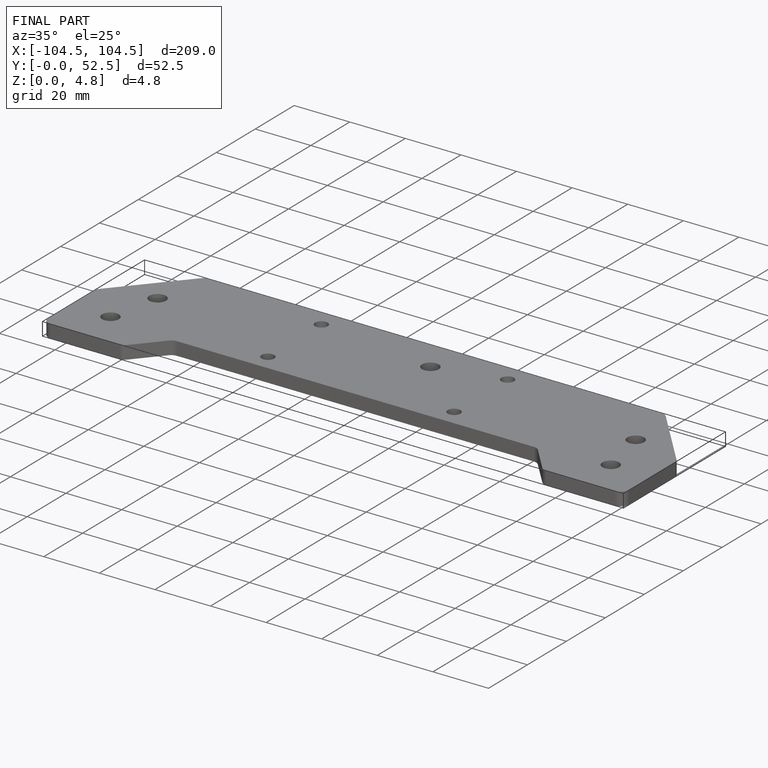
[diagram: finished part — iso view with bounding-box wireframe]
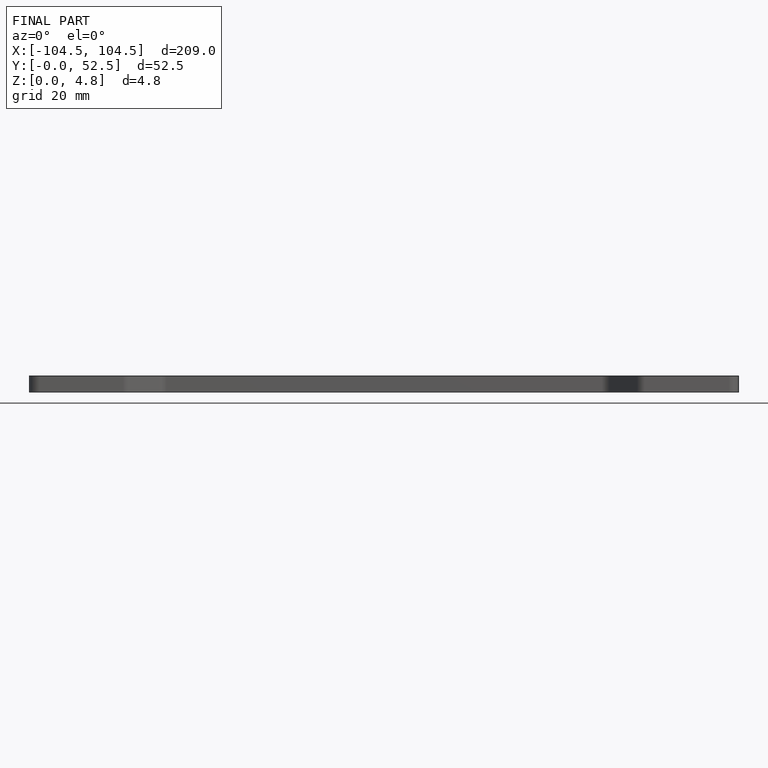
[diagram: finished part — front view with bounding-box wireframe]
